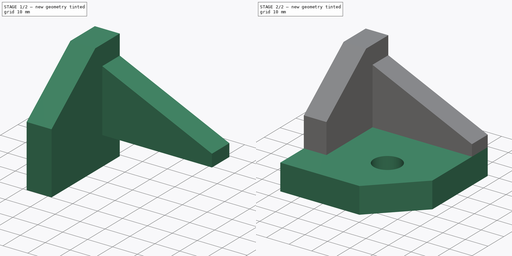
[diagram: build sequence overview — one tinted view per stage of 2, left to right]
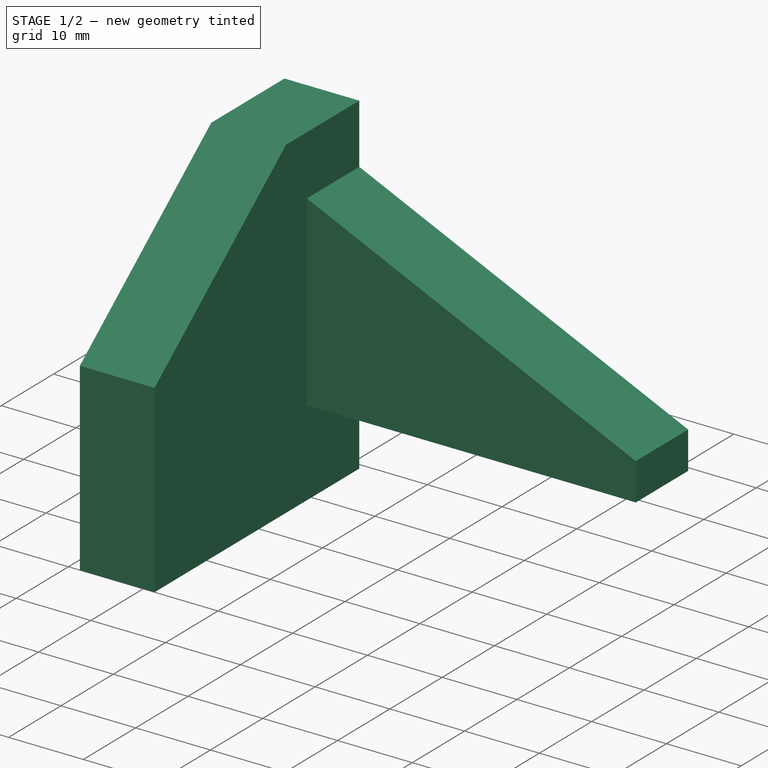
[diagram: stage 1 of 2 — iso view after this stage's code; geometry added in this stage tinted green]
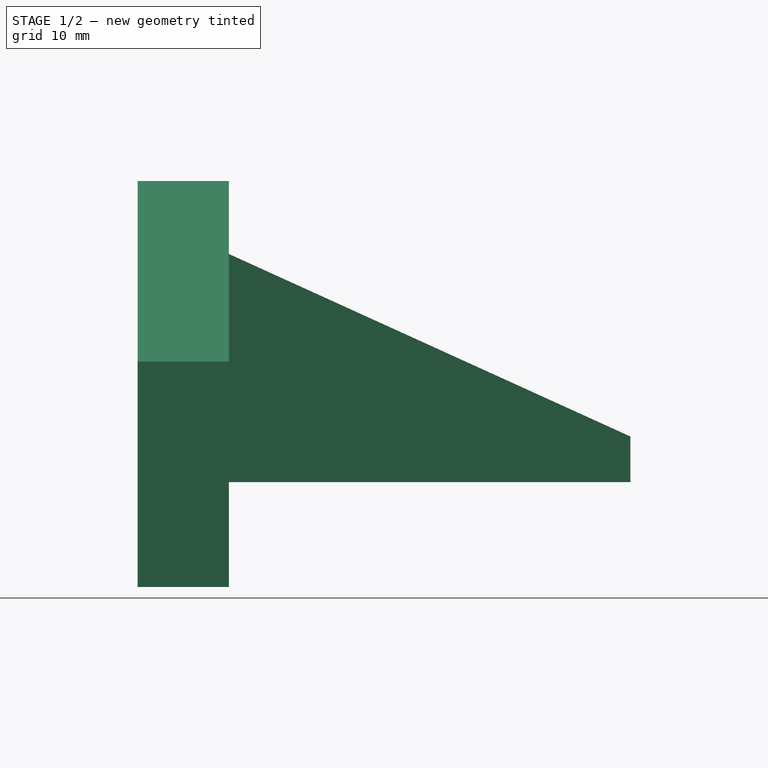
[diagram: stage 1 of 2 — front view after this stage's code; geometry added in this stage tinted green]
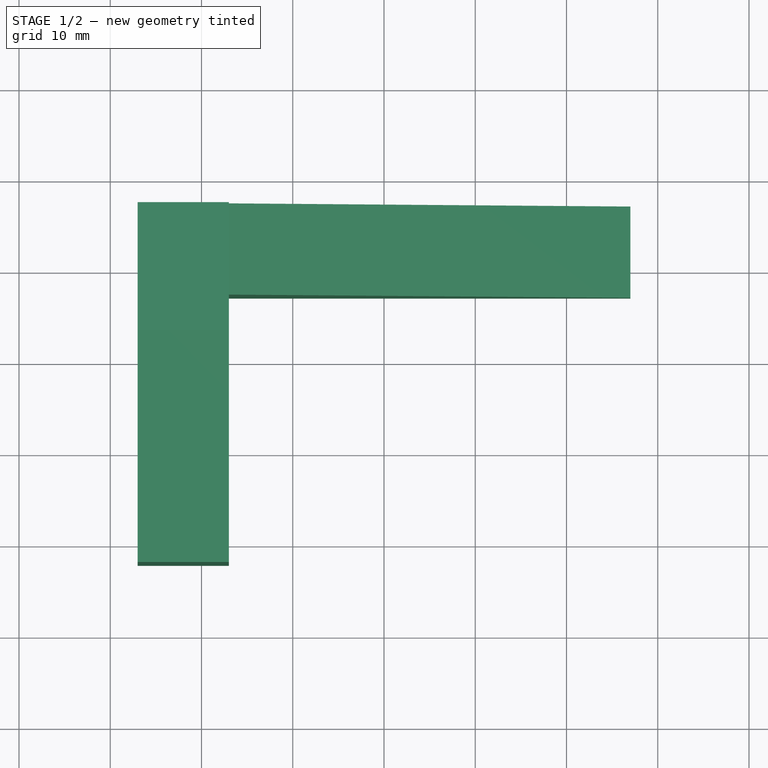
[diagram: stage 1 of 2 — top view after this stage's code; geometry added in this stage tinted green]
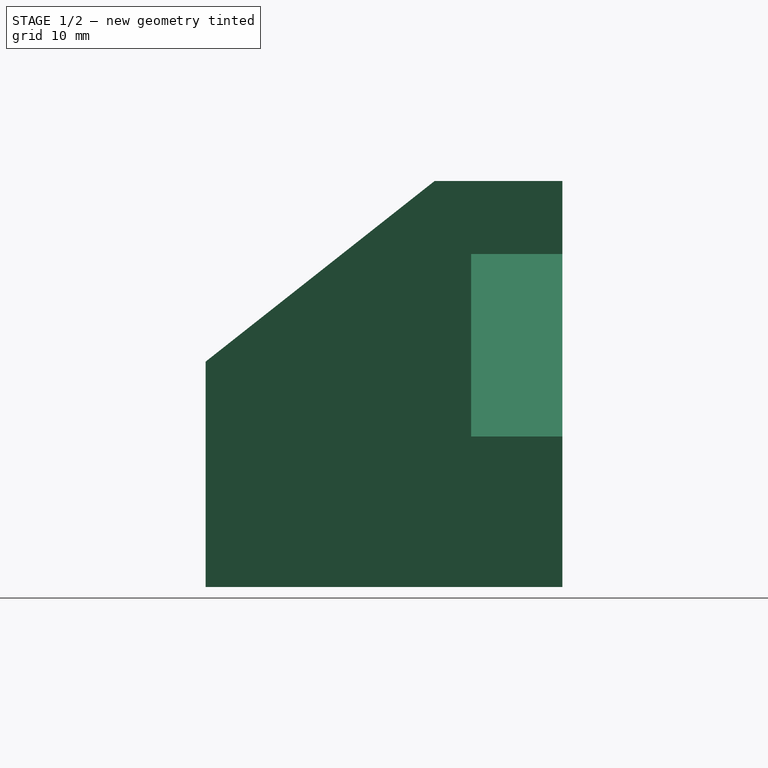
[diagram: stage 1 of 2 — right view after this stage's code; geometry added in this stage tinted green]
FCSTD DOCUMENT  (FreeCAD 0.16R6712 (Git))
Label: 02-Pieza con laterales
License: All rights reserved
LicenseURL: http://en.wikipedia.org/wiki/All_rights_reserved
objects: Sketcher::SketchObject×3, PartDesign::Pad×3, Part::MultiFuse×1
note: 10 computed .brp shape members not serialized (recipe doc carries the construction recipe); baked Part::Feature solids carry a one-line shape summary decoded from their .brp

FEATURE [Sketcher::SketchObject] Sketch001
  Placement = pos=(-27,0,0) rot=(0.57735,0.57735,0.57735;2.0944rad)
  sketch-geometry (5):
    g0: LineSegment StartX=27 StartY=0 StartZ=0 EndX=27 EndY=44.5 EndZ=0
    g1: LineSegment StartX=27 StartY=44.5 StartZ=0 EndX=13 EndY=44.5 EndZ=0
    g2: LineSegment StartX=13 StartY=44.5 StartZ=0 EndX=-12.1 EndY=24.7 EndZ=0
    g3: LineSegment StartX=-12.1 StartY=24.7 StartZ=0 EndX=-12.1 EndY=0 EndZ=0
    g4: LineSegment StartX=-12.1 StartY=0 StartZ=0 EndX=27 EndY=0 EndZ=0
  constraints (15):
    c: Vertical(g0)
    c: Coincident(g0,g1)
    c: Coincident(g1,g2)
    c: Coincident(g2,g3)
    c: PointOnObject(g3,g-1)
    c: Vertical(g3)
    c: Coincident(g3,g4)
    c: Horizontal(g4)
    c: Coincident(g0,g4)
    c: DistanceX(g4,g4) = 39.1
    c: DistanceY(g0,g0) = 44.5
    c: Horizontal(g1)
    c: DistanceX(g1,g1) = 14
    c: DistanceY(g3,g3) = 24.7
    c: DistanceX(g-1,g0) = 27
FEATURE [PartDesign::Pad] Pad001  label="Lateral-I"
  Length = 10
  Length2 = 100
  Placement = pos=(-27,0,0) rot=(0.57735,0.57735,0.57735;2.0944rad)
  Sketch = -> Sketch001
  Type = 0
FEATURE [Sketcher::SketchObject] Sketch002
  Placement = pos=(5,27,0) rot=(1,0,0;1.5708rad)
  sketch-geometry (4):
    g0: LineSegment StartX=22 StartY=11.5 StartZ=0 EndX=22 EndY=16.5 EndZ=0
    g1: LineSegment StartX=22 StartY=16.5 StartZ=0 EndX=-22 EndY=36.5 EndZ=0
    g2: LineSegment StartX=-22 StartY=36.5 StartZ=0 EndX=-22 EndY=11.5 EndZ=0
    g3: LineSegment StartX=-22 StartY=11.5 StartZ=0 EndX=22 EndY=11.5 EndZ=0
  constraints (12):
    c: Vertical(g0)
    c: Coincident(g0,g1)
    c: Coincident(g1,g2)
    c: Vertical(g2)
    c: Coincident(g2,g3)
    c: Coincident(g3,g0)
    c: DistanceY(g0,g0) = 5
    c: DistanceY(g2,g2) = 25
    c: DistanceX(g3,g3) = 44
    c: Horizontal(g3)
    c: DistanceY(g-1,g2) = 11.5
    c: DistanceX(g-1,g0) = 22
FEATURE [PartDesign::Pad] Pad002  label="Lateral-D"
  Length = 10
  Length2 = 100
  Placement = pos=(5,27,0) rot=(1,0,0;1.5708rad)
  Sketch = -> Sketch002
  Type = 0
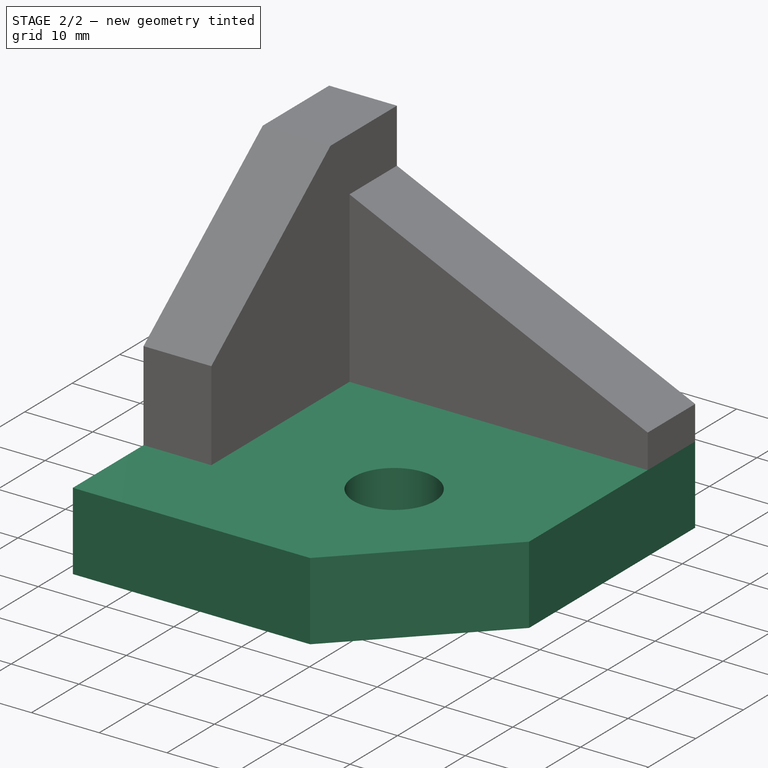
[diagram: stage 2 of 2 — iso view after this stage's code; geometry added in this stage tinted green]
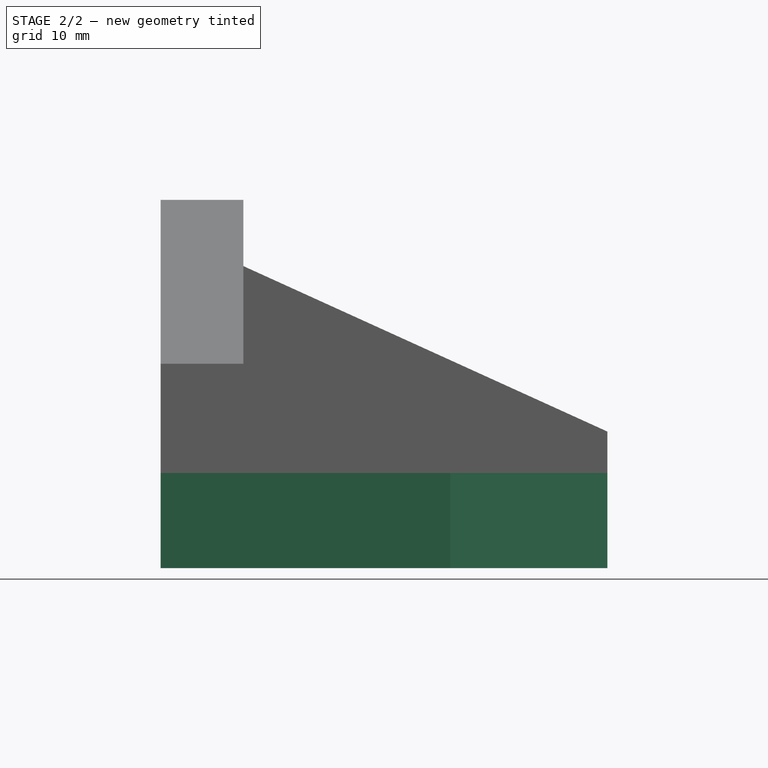
[diagram: stage 2 of 2 — front view after this stage's code; geometry added in this stage tinted green]
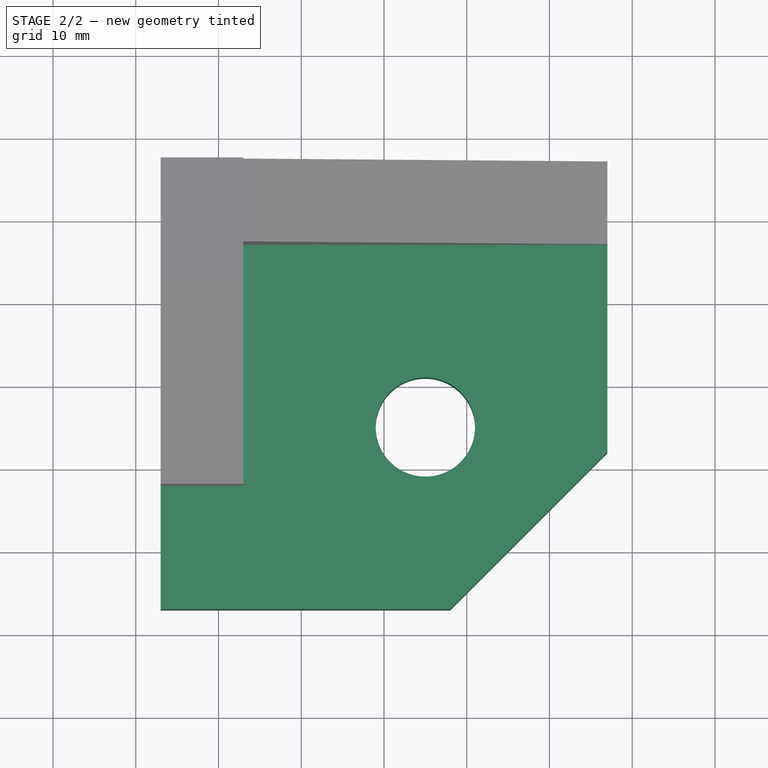
[diagram: stage 2 of 2 — top view after this stage's code; geometry added in this stage tinted green]
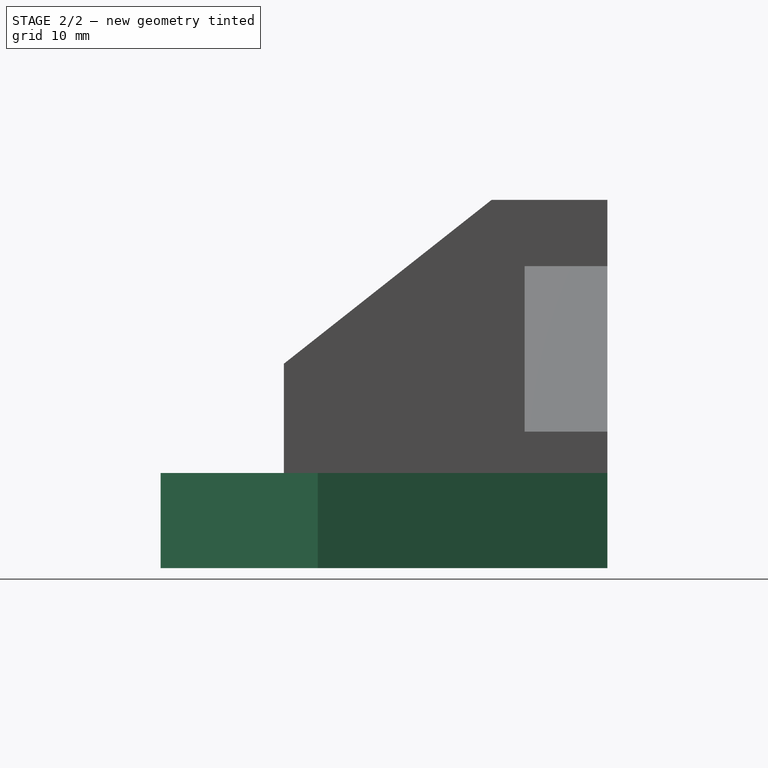
[diagram: stage 2 of 2 — right view after this stage's code; geometry added in this stage tinted green]
FEATURE [Sketcher::SketchObject] Sketch
  sketch-geometry (6):
    g0: LineSegment StartX=-27 StartY=27 StartZ=0 EndX=27 EndY=27 EndZ=0
    g1: LineSegment StartX=27 StartY=27 StartZ=0 EndX=27 EndY=-8 EndZ=0
    g2: LineSegment StartX=27 StartY=-8 StartZ=0 EndX=8 EndY=-27 EndZ=0
    g3: LineSegment StartX=8 StartY=-27 StartZ=0 EndX=-27 EndY=-27 EndZ=0
    g4: LineSegment StartX=-27 StartY=-27 StartZ=0 EndX=-27 EndY=27 EndZ=0
    g5: Circle CenterX=5 CenterY=-5 CenterZ=0 NormalX=0 NormalY=0 NormalZ=1 Radius=6
  constraints (18):
    c: Horizontal(g0)
    c: Coincident(g0,g1)
    c: Vertical(g1)
    c: Coincident(g1,g2)
    c: Coincident(g2,g3)
    c: Horizontal(g3)
    c: Coincident(g3,g4)
    c: Coincident(g4,g0)
    c: Vertical(g4)
    c: DistanceX(g0,g0) = 54
    c: Symmetric(g0,g0,g-2)
    c: Equal(g4,g0)
    c: Symmetric(g0,g3,g-1)
    c: DistanceY(g1,g1) = 35
    c: DistanceX(g3,g3) = 35
    c: DistanceX(g5,g1) = 22
    c: DistanceY(g2,g5) = 22
    c: Radius(g5) = 6
FEATURE [PartDesign::Pad] Pad  label="Base"
  Length = 11.5
  Length2 = 100
  Sketch = -> Sketch
  Type = 0
FEATURE [Part::MultiFuse] Fusion  label="Pieza-laterales"
  Shapes = -> [Pad002,Pad001,Pad]
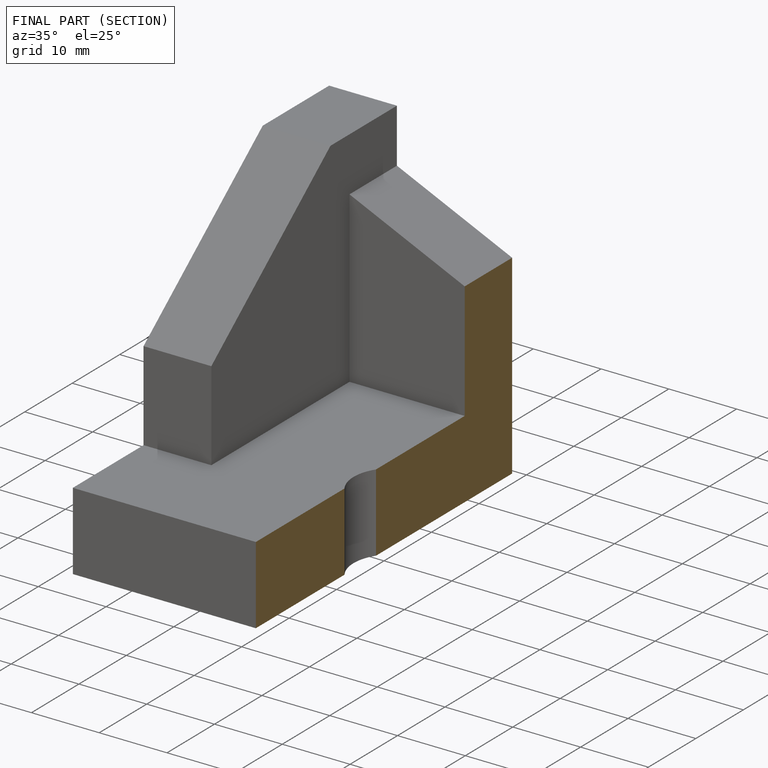
[diagram: finished part — half-section view (interior)]
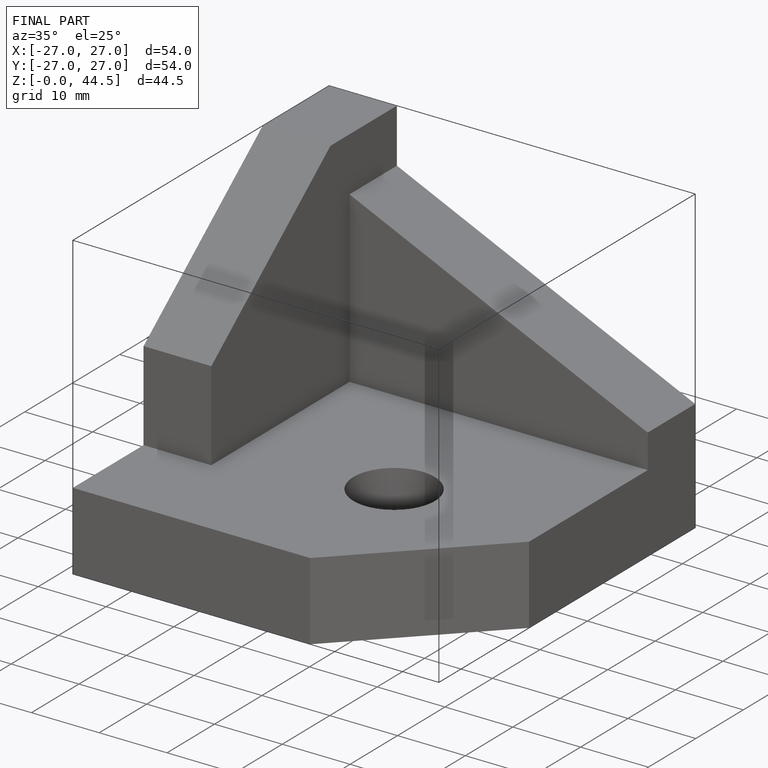
[diagram: finished part — iso view with bounding-box wireframe]
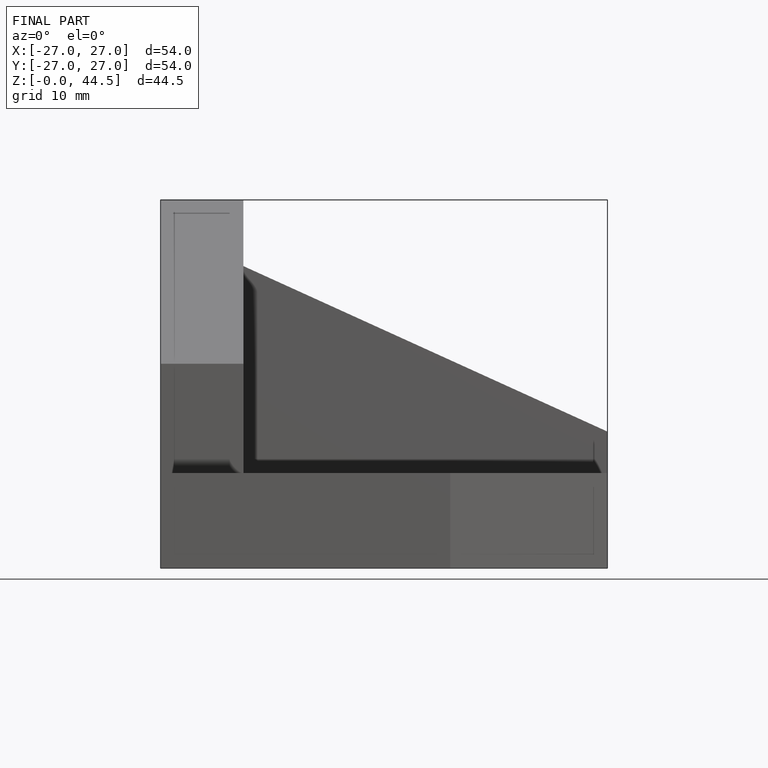
[diagram: finished part — front view with bounding-box wireframe]
